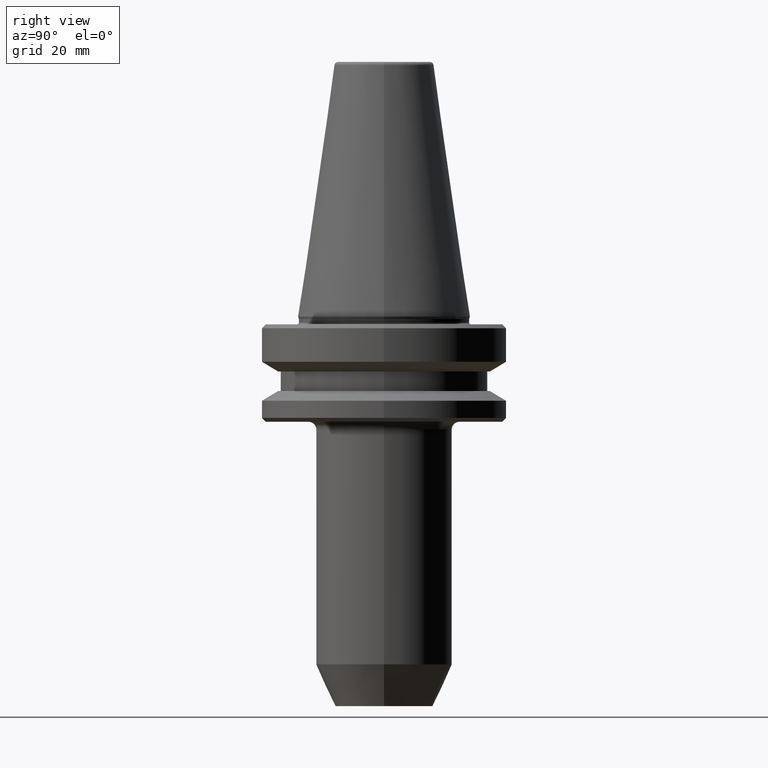
[diagram: clean part render]
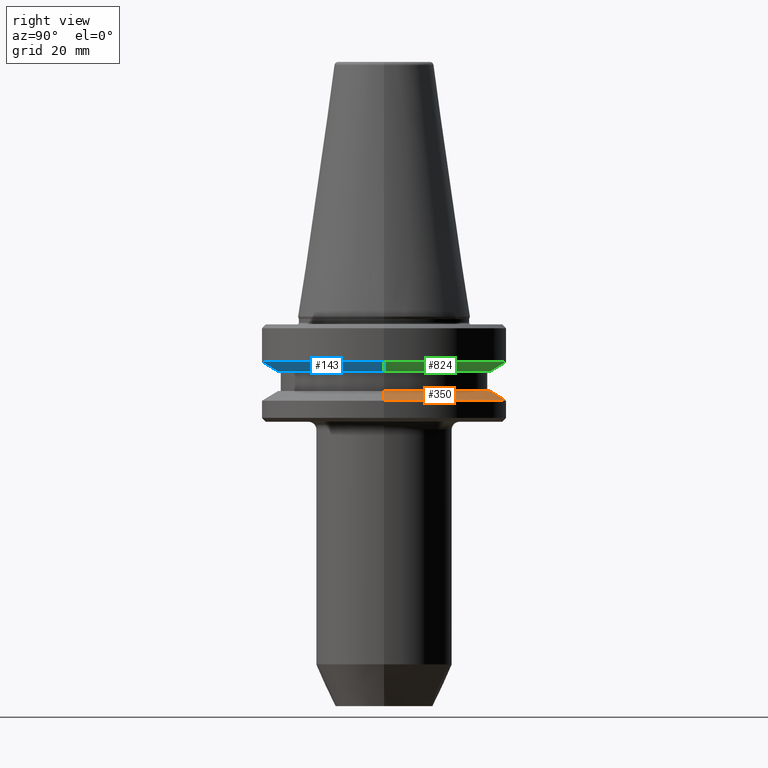
[diagram: same view with three faces highlighted in distinct colors, each labeled with its STEP entity id]
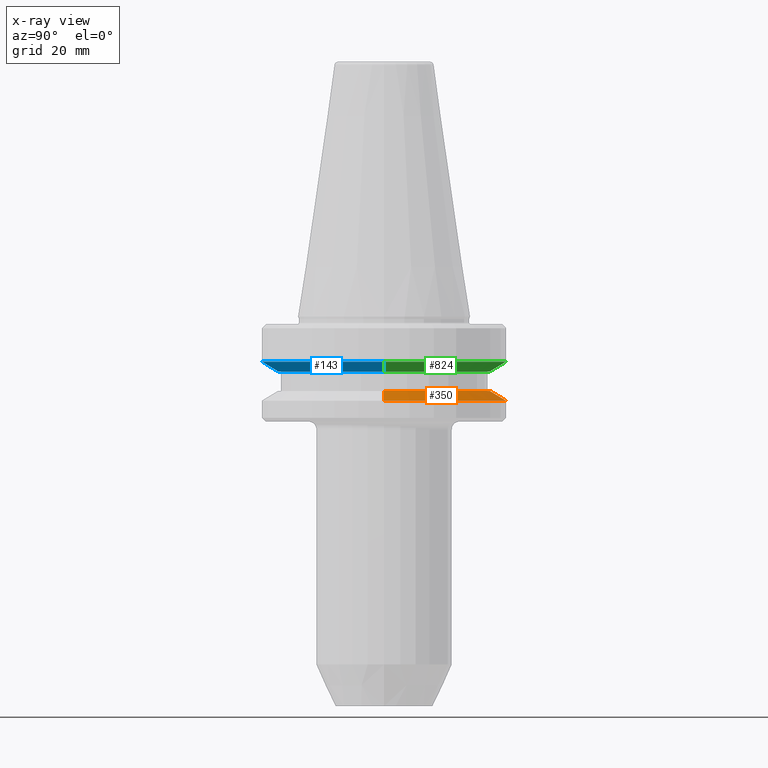
[diagram: x-ray of the same camera — body ghosted, the three highlighted faces saturated]
A machine part, right view with three faces highlighted in distinct colors.
The next image is the same camera in x-ray (body ghosted, the three faces saturated) — at least one of them is partly hidden behind the body in this view.
Their STEP definitions:

[orange] entity #350 — the highlighted conical surface has half-angle 60 deg.
#5 = DIRECTION ( 'NONE',  ( -0.0000000000000000000, -0.0000000000000000000, 1.000000000000000000 ) ) ;
#54 = CARTESIAN_POINT ( 'NONE',  ( 27.16962701892156000, 3.592478546794573200E-015, -19.10000000008742300 ) ) ;
#61 = VECTOR ( 'NONE', #718, 1000.000000000000000 ) ;
#72 = VERTEX_POINT ( 'NONE', #797 ) ;
#194 = CARTESIAN_POINT ( 'NONE',  ( 0.0000000000000000000, 0.0000000000000000000, -21.60014200640457500 ) ) ;
#211 = CARTESIAN_POINT ( 'NONE',  ( 0.0000000000000000000, 0.0000000000000000000, -21.60014200640457500 ) ) ;
#274 = DIRECTION ( 'NONE',  ( 1.000000000000000000, 0.0000000000000000000, 0.0000000000000000000 ) ) ;
#350 = ADVANCED_FACE ( 'NONE', ( #415 ), #676, .T. ) ;
#373 = VERTEX_POINT ( 'NONE', #54 ) ;
#392 = AXIS2_PLACEMENT_3D ( 'NONE', #475, #5, #274 ) ;
#409 = DIRECTION ( 'NONE',  ( 0.0000000000000000000, 0.0000000000000000000, -1.000000000000000000 ) ) ;
#415 = FACE_OUTER_BOUND ( 'NONE', #751, .T. ) ;
#467 = VERTEX_POINT ( 'NONE', #644 ) ;
#475 = CARTESIAN_POINT ( 'NONE',  ( 0.0000000000000000000, 0.0000000000000000000, -19.10000000008742300 ) ) ;
#501 = EDGE_CURVE ( 'NONE', #467, #72, #679, .T. ) ;
#528 = CARTESIAN_POINT ( 'NONE',  ( 31.50000000000008500, 0.0000000000000000000, -21.60014200640457500 ) ) ;
#564 = ORIENTED_EDGE ( 'NONE', *, *, #614, .T. ) ;
#598 = ORIENTED_EDGE ( 'NONE', *, *, #647, .F. ) ;
#607 = AXIS2_PLACEMENT_3D ( 'NONE', #194, #809, #615 ) ;
#612 = ORIENTED_EDGE ( 'NONE', *, *, #683, .T. ) ;
#614 = EDGE_CURVE ( 'NONE', #931, #72, #974, .T. ) ;
#615 = DIRECTION ( 'NONE',  ( 1.000000000000000000, 0.0000000000000000000, 0.0000000000000000000 ) ) ;
#644 = CARTESIAN_POINT ( 'NONE',  ( -27.16962701892156000, 0.0000000000000000000, -19.10000000008742300 ) ) ;
#647 = EDGE_CURVE ( 'NONE', #373, #467, #953, .T. ) ;
#673 = CARTESIAN_POINT ( 'NONE',  ( -31.50000000000008500, 0.0000000000000000000, -21.60014200640457500 ) ) ;
#676 = CONICAL_SURFACE ( 'NONE', #985, 31.50000000000008500, 1.047197551196600500 ) ;
#679 = LINE ( 'NONE', #673, #61 ) ;
#683 = EDGE_CURVE ( 'NONE', #373, #931, #743, .T. ) ;
#697 = DIRECTION ( 'NONE',  ( 0.8660254037844400400, 1.060575238724908600E-016, -0.4999999999999976100 ) ) ;
#718 = DIRECTION ( 'NONE',  ( -0.8660254037844400400, 0.0000000000000000000, -0.4999999999999976100 ) ) ;
#720 = VECTOR ( 'NONE', #697, 1000.000000000000000 ) ;
#743 = LINE ( 'NONE', #755, #720 ) ;
#751 = EDGE_LOOP ( 'NONE', ( #598, #612, #564, #1011 ) ) ;
#755 = CARTESIAN_POINT ( 'NONE',  ( 31.50000000000008500, 3.857637417314172900E-015, -21.60014200640457500 ) ) ;
#797 = CARTESIAN_POINT ( 'NONE',  ( -31.50000000000008500, 3.857637417314172900E-015, -21.60014200640457500 ) ) ;
#809 = DIRECTION ( 'NONE',  ( -0.0000000000000000000, -0.0000000000000000000, 1.000000000000000000 ) ) ;
#815 = DIRECTION ( 'NONE',  ( -1.000000000000000000, 0.0000000000000000000, 0.0000000000000000000 ) ) ;
#931 = VERTEX_POINT ( 'NONE', #528 ) ;
#953 = CIRCLE ( 'NONE', #392, 27.16962701892156000 ) ;
#974 = CIRCLE ( 'NONE', #607, 31.50000000000008500 ) ;
#985 = AXIS2_PLACEMENT_3D ( 'NONE', #211, #409, #815 ) ;
#1011 = ORIENTED_EDGE ( 'NONE', *, *, #501, .F. ) ;

[blue] entity #143 — the highlighted conical surface has half-angle 60 deg.
#17 = DIRECTION ( 'NONE',  ( -0.8660254037844398200, 1.060575238724908400E-016, 0.4999999999999977200 ) ) ;
#80 = AXIS2_PLACEMENT_3D ( 'NONE', #606, #217, #387 ) ;
#90 = DIRECTION ( 'NONE',  ( -0.0000000000000000000, -0.0000000000000000000, 1.000000000000000000 ) ) ;
#143 = ADVANCED_FACE ( 'NONE', ( #521 ), #231, .T. ) ;
#149 = CARTESIAN_POINT ( 'NONE',  ( 27.16962701892278200, 0.0000000000000000000, -14.09999999999965500 ) ) ;
#189 = EDGE_CURVE ( 'NONE', #952, #919, #589, .T. ) ;
#217 = DIRECTION ( 'NONE',  ( -0.0000000000000000000, -0.0000000000000000000, 1.000000000000000000 ) ) ;
#226 = VECTOR ( 'NONE', #17, 1000.000000000000100 ) ;
#229 = ORIENTED_EDGE ( 'NONE', *, *, #765, .T. ) ;
#231 = CONICAL_SURFACE ( 'NONE', #236, 27.16962701892278200, 1.047197551196600300 ) ;
#236 = AXIS2_PLACEMENT_3D ( 'NONE', #936, #90, #565 ) ;
#296 = CARTESIAN_POINT ( 'NONE',  ( -27.16962701892278200, 3.592478546794634700E-015, -14.09999999999965500 ) ) ;
#311 = CARTESIAN_POINT ( 'NONE',  ( 31.49999999999986100, 0.0000000000000000000, -11.59985799368333500 ) ) ;
#322 = DIRECTION ( 'NONE',  ( 1.000000000000000000, 0.0000000000000000000, 0.0000000000000000000 ) ) ;
#387 = DIRECTION ( 'NONE',  ( 1.000000000000000000, 0.0000000000000000000, 0.0000000000000000000 ) ) ;
#390 = DIRECTION ( 'NONE',  ( 0.8660254037844398200, 0.0000000000000000000, 0.4999999999999977200 ) ) ;
#438 = VECTOR ( 'NONE', #390, 1000.000000000000100 ) ;
#464 = EDGE_LOOP ( 'NONE', ( #719, #1038, #229, #942 ) ) ;
#466 = LINE ( 'NONE', #747, #438 ) ;
#508 = EDGE_CURVE ( 'NONE', #952, #534, #893, .T. ) ;
#521 = FACE_OUTER_BOUND ( 'NONE', #464, .T. ) ;
#534 = VERTEX_POINT ( 'NONE', #975 ) ;
#565 = DIRECTION ( 'NONE',  ( 1.000000000000000000, 0.0000000000000000000, 0.0000000000000000000 ) ) ;
#589 = CIRCLE ( 'NONE', #80, 27.16962701892278200 ) ;
#606 = CARTESIAN_POINT ( 'NONE',  ( 0.0000000000000000000, 0.0000000000000000000, -14.09999999999965500 ) ) ;
#609 = DIRECTION ( 'NONE',  ( -0.0000000000000000000, -0.0000000000000000000, 1.000000000000000000 ) ) ;
#692 = CIRCLE ( 'NONE', #956, 31.49999999999986100 ) ;
#719 = ORIENTED_EDGE ( 'NONE', *, *, #508, .F. ) ;
#721 = EDGE_CURVE ( 'NONE', #534, #1003, #692, .T. ) ;
#747 = CARTESIAN_POINT ( 'NONE',  ( 27.16962701892278200, 0.0000000000000000000, -14.09999999999965500 ) ) ;
#765 = EDGE_CURVE ( 'NONE', #919, #1003, #466, .T. ) ;
#853 = CARTESIAN_POINT ( 'NONE',  ( -27.16962701892278200, 3.327319676275122900E-015, -14.09999999999965500 ) ) ;
#893 = LINE ( 'NONE', #853, #226 ) ;
#919 = VERTEX_POINT ( 'NONE', #149 ) ;
#936 = CARTESIAN_POINT ( 'NONE',  ( 0.0000000000000000000, 0.0000000000000000000, -14.09999999999965500 ) ) ;
#942 = ORIENTED_EDGE ( 'NONE', *, *, #721, .F. ) ;
#952 = VERTEX_POINT ( 'NONE', #296 ) ;
#956 = AXIS2_PLACEMENT_3D ( 'NONE', #997, #609, #322 ) ;
#975 = CARTESIAN_POINT ( 'NONE',  ( -31.49999999999986100, 3.857637417314145300E-015, -11.59985799368333500 ) ) ;
#997 = CARTESIAN_POINT ( 'NONE',  ( 0.0000000000000000000, 0.0000000000000000000, -11.59985799368333500 ) ) ;
#1003 = VERTEX_POINT ( 'NONE', #311 ) ;
#1038 = ORIENTED_EDGE ( 'NONE', *, *, #189, .T. ) ;

[green] entity #824 — the highlighted conical surface has half-angle 60 deg.
#17 = DIRECTION ( 'NONE',  ( -0.8660254037844398200, 1.060575238724908400E-016, 0.4999999999999977200 ) ) ;
#149 = CARTESIAN_POINT ( 'NONE',  ( 27.16962701892278200, 0.0000000000000000000, -14.09999999999965500 ) ) ;
#185 = EDGE_LOOP ( 'NONE', ( #233, #574, #555, #967 ) ) ;
#226 = VECTOR ( 'NONE', #17, 1000.000000000000100 ) ;
#233 = ORIENTED_EDGE ( 'NONE', *, *, #910, .T. ) ;
#244 = DIRECTION ( 'NONE',  ( 1.000000000000000000, 0.0000000000000000000, 0.0000000000000000000 ) ) ;
#271 = AXIS2_PLACEMENT_3D ( 'NONE', #382, #1007, #244 ) ;
#296 = CARTESIAN_POINT ( 'NONE',  ( -27.16962701892278200, 3.592478546794634700E-015, -14.09999999999965500 ) ) ;
#311 = CARTESIAN_POINT ( 'NONE',  ( 31.49999999999986100, 0.0000000000000000000, -11.59985799368333500 ) ) ;
#382 = CARTESIAN_POINT ( 'NONE',  ( 0.0000000000000000000, 0.0000000000000000000, -14.09999999999965500 ) ) ;
#390 = DIRECTION ( 'NONE',  ( 0.8660254037844398200, 0.0000000000000000000, 0.4999999999999977200 ) ) ;
#413 = DIRECTION ( 'NONE',  ( -0.0000000000000000000, -0.0000000000000000000, 1.000000000000000000 ) ) ;
#438 = VECTOR ( 'NONE', #390, 1000.000000000000100 ) ;
#466 = LINE ( 'NONE', #747, #438 ) ;
#508 = EDGE_CURVE ( 'NONE', #952, #534, #893, .T. ) ;
#534 = VERTEX_POINT ( 'NONE', #975 ) ;
#542 = CIRCLE ( 'NONE', #583, 31.49999999999986100 ) ;
#545 = AXIS2_PLACEMENT_3D ( 'NONE', #822, #413, #646 ) ;
#555 = ORIENTED_EDGE ( 'NONE', *, *, #659, .F. ) ;
#574 = ORIENTED_EDGE ( 'NONE', *, *, #508, .T. ) ;
#583 = AXIS2_PLACEMENT_3D ( 'NONE', #740, #593, #657 ) ;
#593 = DIRECTION ( 'NONE',  ( -0.0000000000000000000, -0.0000000000000000000, 1.000000000000000000 ) ) ;
#599 = FACE_OUTER_BOUND ( 'NONE', #185, .T. ) ;
#646 = DIRECTION ( 'NONE',  ( 1.000000000000000000, 0.0000000000000000000, 0.0000000000000000000 ) ) ;
#657 = DIRECTION ( 'NONE',  ( 1.000000000000000000, 0.0000000000000000000, 0.0000000000000000000 ) ) ;
#659 = EDGE_CURVE ( 'NONE', #1003, #534, #542, .T. ) ;
#740 = CARTESIAN_POINT ( 'NONE',  ( 0.0000000000000000000, 0.0000000000000000000, -11.59985799368333500 ) ) ;
#747 = CARTESIAN_POINT ( 'NONE',  ( 27.16962701892278200, 0.0000000000000000000, -14.09999999999965500 ) ) ;
#765 = EDGE_CURVE ( 'NONE', #919, #1003, #466, .T. ) ;
#773 = CONICAL_SURFACE ( 'NONE', #271, 27.16962701892278200, 1.047197551196600300 ) ;
#822 = CARTESIAN_POINT ( 'NONE',  ( 0.0000000000000000000, 0.0000000000000000000, -14.09999999999965500 ) ) ;
#824 = ADVANCED_FACE ( 'NONE', ( #599 ), #773, .T. ) ;
#853 = CARTESIAN_POINT ( 'NONE',  ( -27.16962701892278200, 3.327319676275122900E-015, -14.09999999999965500 ) ) ;
#893 = LINE ( 'NONE', #853, #226 ) ;
#910 = EDGE_CURVE ( 'NONE', #919, #952, #941, .T. ) ;
#919 = VERTEX_POINT ( 'NONE', #149 ) ;
#941 = CIRCLE ( 'NONE', #545, 27.16962701892278200 ) ;
#952 = VERTEX_POINT ( 'NONE', #296 ) ;
#967 = ORIENTED_EDGE ( 'NONE', *, *, #765, .F. ) ;
#975 = CARTESIAN_POINT ( 'NONE',  ( -31.49999999999986100, 3.857637417314145300E-015, -11.59985799368333500 ) ) ;
#1003 = VERTEX_POINT ( 'NONE', #311 ) ;
#1007 = DIRECTION ( 'NONE',  ( -0.0000000000000000000, -0.0000000000000000000, 1.000000000000000000 ) ) ;